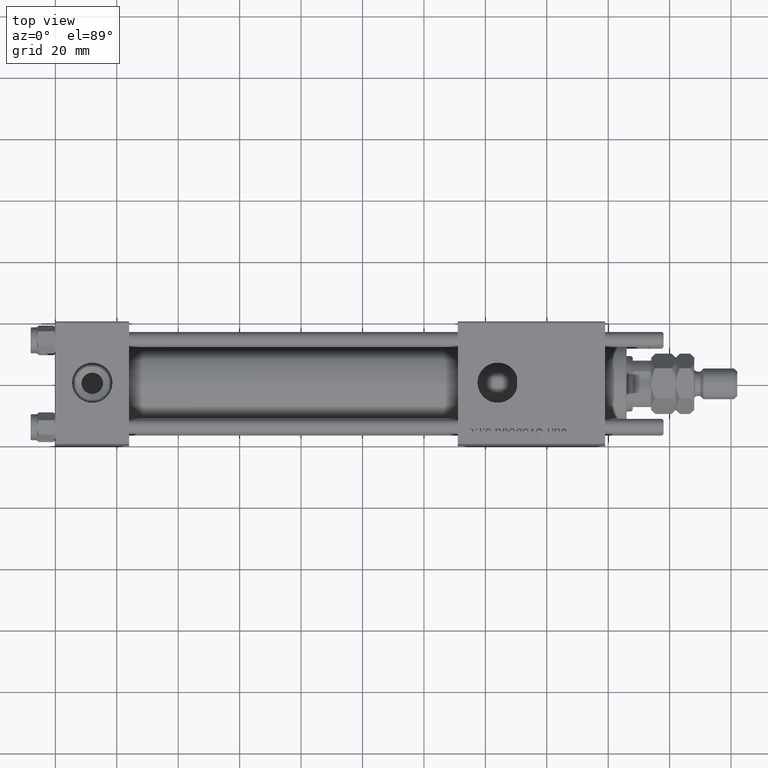
[diagram: clean part render]
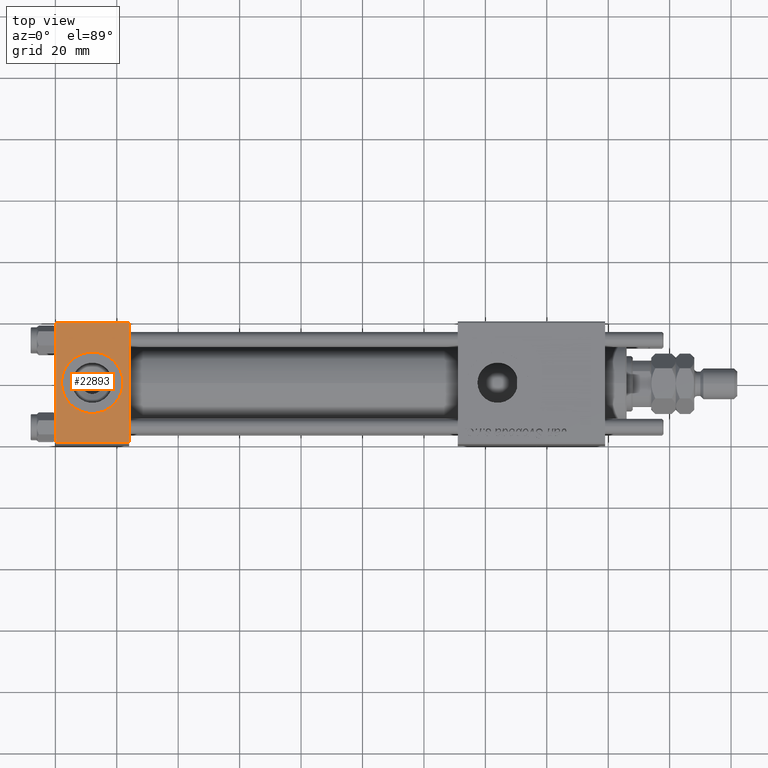
[diagram: same view with one face highlighted and labeled with its STEP entity id]
A machine part, top view. The second image highlights one B-rep face of the part: STEP entity #22893.
In plain terms, the highlighted planar face has unit normal (0, 0, -1).
Its self-contained STEP definition (entity closure, byte-faithful):
#675 = PLANE ( 'NONE',  #55894 ) ;
#1246 = CIRCLE ( 'NONE', #33421, 9.999999999999998224 ) ;
#1293 = CARTESIAN_POINT ( 'NONE',  ( 12.00000000000000000, 1.540743955509788682E-30, 19.99999999999999645 ) ) ;
#1475 = CARTESIAN_POINT ( 'NONE',  ( 0.000000000000000000, -19.49999999999999289, 19.99999999999998934 ) ) ;
#2334 = CARTESIAN_POINT ( 'NONE',  ( 2.000000000000003553, 1.224646799147354440E-15, 19.99999999999999645 ) ) ;
#2457 = VECTOR ( 'NONE', #48626, 1000.000000000000000 ) ;
#2645 = CARTESIAN_POINT ( 'NONE',  ( 0.000000000000000000, 19.50000000000000000, 20.00000000000000000 ) ) ;
#2685 = LINE ( 'NONE', #17013, #41817 ) ;
#3592 = LINE ( 'NONE', #12454, #54799 ) ;
#3866 = VERTEX_POINT ( 'NONE', #1475 ) ;
#4823 = ORIENTED_EDGE ( 'NONE', *, *, #53310, .F. ) ;
#5859 = VERTEX_POINT ( 'NONE', #41098 ) ;
#6721 = CARTESIAN_POINT ( 'NONE',  ( 0.000000000000000000, 19.50000000000000000, 20.00000000000000000 ) ) ;
#7024 = VERTEX_POINT ( 'NONE', #40051 ) ;
#7423 = ORIENTED_EDGE ( 'NONE', *, *, #8594, .F. ) ;
#8594 = EDGE_CURVE ( 'NONE', #5859, #58094, #37931, .T. ) ;
#12454 = CARTESIAN_POINT ( 'NONE',  ( 24.00000000000000000, 20.00000000000000000, 20.00000000000000000 ) ) ;
#17013 = CARTESIAN_POINT ( 'NONE',  ( 0.000000000000000000, 20.00000000000000000, 20.00000000000000000 ) ) ;
#19820 = ORIENTED_EDGE ( 'NONE', *, *, #34408, .T. ) ;
#19907 = DIRECTION ( 'NONE',  ( 1.000000000000000000, 0.000000000000000000, 0.000000000000000000 ) ) ;
#20745 = DIRECTION ( 'NONE',  ( -1.000000000000000000, 0.000000000000000000, 0.000000000000000000 ) ) ;
#22893 = ADVANCED_FACE ( 'NONE', ( #51726, #60272 ), #675, .F. ) ;
#23085 = EDGE_CURVE ( 'NONE', #58094, #5859, #1246, .T. ) ;
#23271 = DIRECTION ( 'NONE',  ( 0.000000000000000000, 1.000000000000000000, 2.602085213965210149E-16 ) ) ;
#25618 = LINE ( 'NONE', #6721, #51153 ) ;
#26168 = DIRECTION ( 'NONE',  ( 0.000000000000000000, -1.000000000000000000, -2.602085213965210149E-16 ) ) ;
#26415 = CARTESIAN_POINT ( 'NONE',  ( 24.00000000000000000, -19.49999999999999289, 19.99999999999998934 ) ) ;
#26761 = EDGE_CURVE ( 'NONE', #7024, #54224, #25618, .T. ) ;
#29857 = ORIENTED_EDGE ( 'NONE', *, *, #23085, .F. ) ;
#30541 = LINE ( 'NONE', #57494, #2457 ) ;
#33071 = CARTESIAN_POINT ( 'NONE',  ( 24.00000000000000000, 20.00000000000000000, 20.00000000000000000 ) ) ;
#33421 = AXIS2_PLACEMENT_3D ( 'NONE', #1293, #38875, #19907 ) ;
#34408 = EDGE_CURVE ( 'NONE', #3866, #58138, #30541, .T. ) ;
#36975 = AXIS2_PLACEMENT_3D ( 'NONE', #52349, #41413, #46612 ) ;
#37931 = CIRCLE ( 'NONE', #36975, 9.999999999999998224 ) ;
#38875 = DIRECTION ( 'NONE',  ( 0.000000000000000000, 0.000000000000000000, 1.000000000000000000 ) ) ;
#39671 = DIRECTION ( 'NONE',  ( 0.000000000000000000, -1.000000000000000000, -2.602085213965210149E-16 ) ) ;
#40051 = CARTESIAN_POINT ( 'NONE',  ( 24.00000000000000000, 19.50000000000000000, 20.00000000000000000 ) ) ;
#41098 = CARTESIAN_POINT ( 'NONE',  ( 22.00000000000000000, 1.540743955509788682E-30, 19.99999999999999645 ) ) ;
#41413 = DIRECTION ( 'NONE',  ( 0.000000000000000000, 0.000000000000000000, 1.000000000000000000 ) ) ;
#41817 = VECTOR ( 'NONE', #26168, 1000.000000000000000 ) ;
#42235 = DIRECTION ( 'NONE',  ( 0.000000000000000000, 2.602085213965210149E-16, -1.000000000000000000 ) ) ;
#46612 = DIRECTION ( 'NONE',  ( 1.000000000000000000, 0.000000000000000000, 0.000000000000000000 ) ) ;
#47068 = EDGE_LOOP ( 'NONE', ( #7423, #29857 ) ) ;
#48457 = EDGE_CURVE ( 'NONE', #54224, #3866, #2685, .T. ) ;
#48626 = DIRECTION ( 'NONE',  ( 1.000000000000000000, 0.000000000000000000, 0.000000000000000000 ) ) ;
#50908 = ORIENTED_EDGE ( 'NONE', *, *, #26761, .T. ) ;
#51153 = VECTOR ( 'NONE', #20745, 1000.000000000000000 ) ;
#51726 = FACE_BOUND ( 'NONE', #47068, .T. ) ;
#52349 = CARTESIAN_POINT ( 'NONE',  ( 12.00000000000000000, 1.540743955509788682E-30, 19.99999999999999645 ) ) ;
#53310 = EDGE_CURVE ( 'NONE', #7024, #58138, #3592, .T. ) ;
#54037 = ORIENTED_EDGE ( 'NONE', *, *, #48457, .T. ) ;
#54224 = VERTEX_POINT ( 'NONE', #2645 ) ;
#54799 = VECTOR ( 'NONE', #39671, 1000.000000000000000 ) ;
#55894 = AXIS2_PLACEMENT_3D ( 'NONE', #33071, #42235, #23271 ) ;
#56736 = EDGE_LOOP ( 'NONE', ( #54037, #19820, #4823, #50908 ) ) ;
#57494 = CARTESIAN_POINT ( 'NONE',  ( 24.00000000000000000, -19.49999999999999289, 19.99999999999998934 ) ) ;
#58094 = VERTEX_POINT ( 'NONE', #2334 ) ;
#58138 = VERTEX_POINT ( 'NONE', #26415 ) ;
#60272 = FACE_OUTER_BOUND ( 'NONE', #56736, .T. ) ;